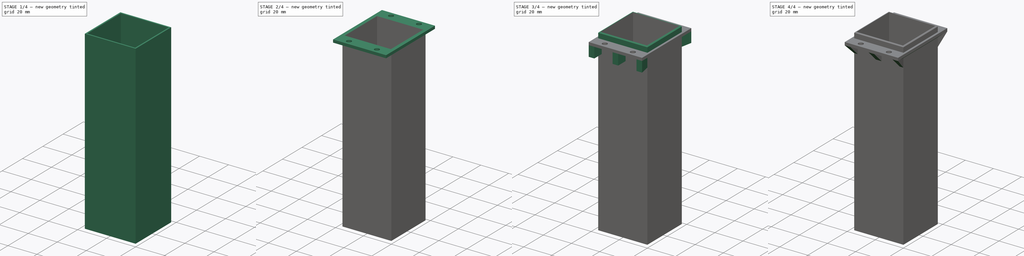
[diagram: build sequence overview — one tinted view per stage of 4, left to right]
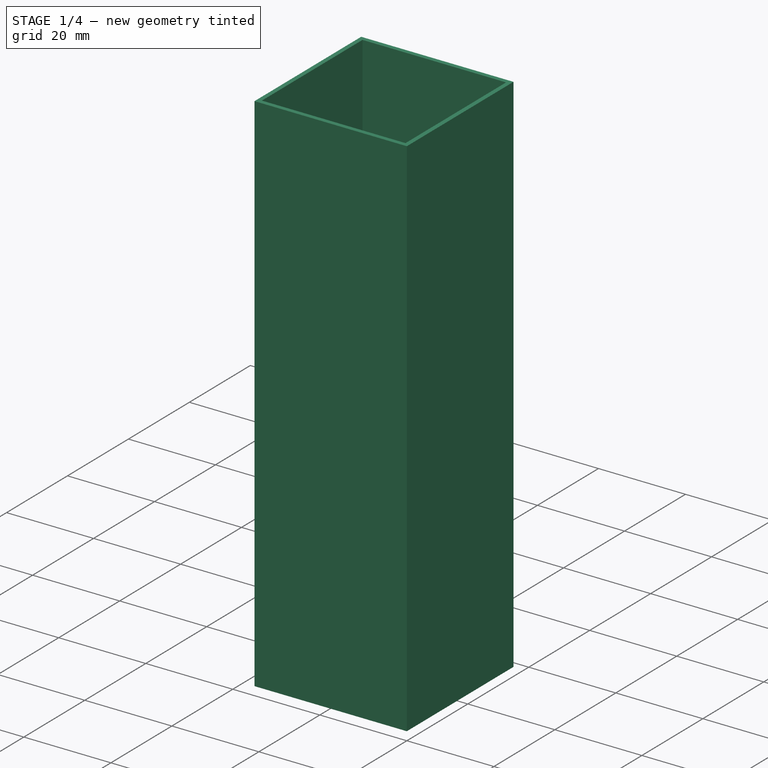
[diagram: stage 1 of 4 — iso view after this stage's code; geometry added in this stage tinted green]
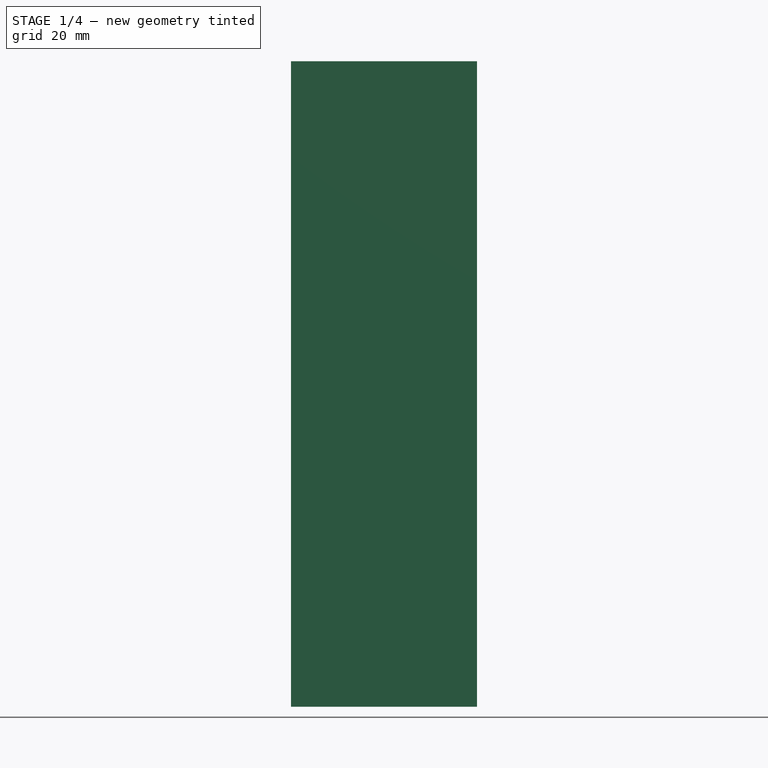
[diagram: stage 1 of 4 — front view after this stage's code; geometry added in this stage tinted green]
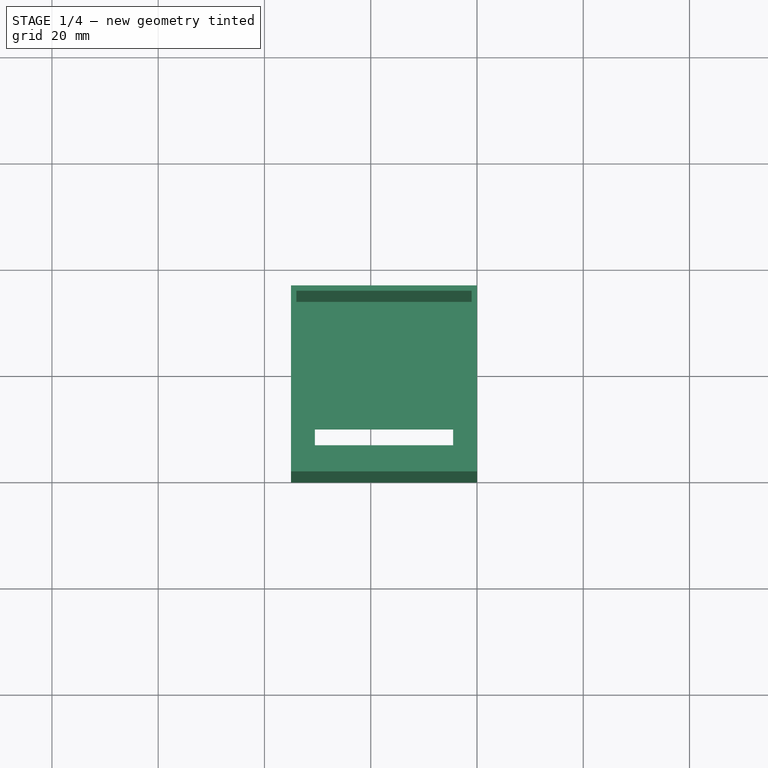
[diagram: stage 1 of 4 — top view after this stage's code; geometry added in this stage tinted green]
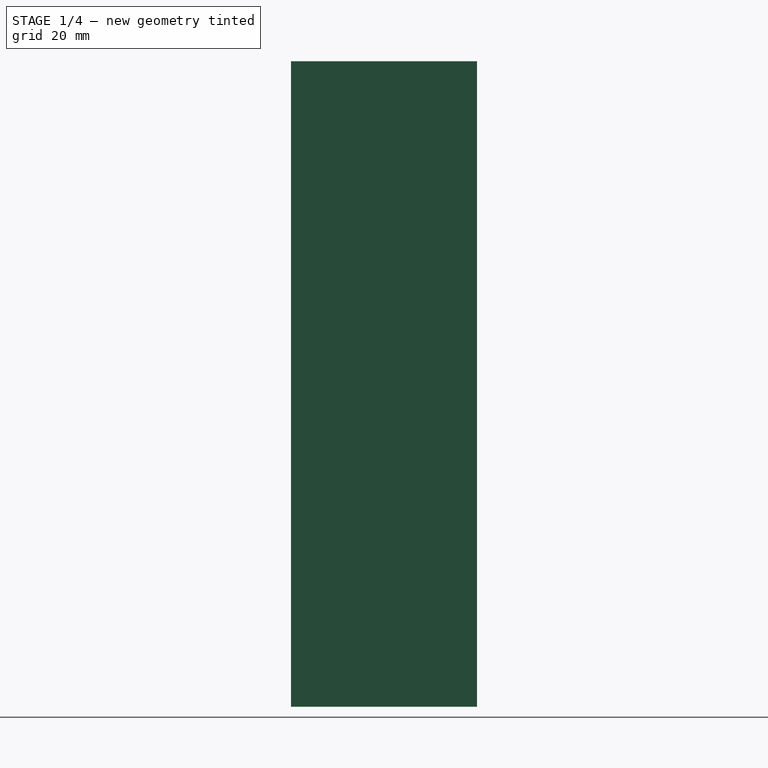
[diagram: stage 1 of 4 — right view after this stage's code; geometry added in this stage tinted green]
FCSTD DOCUMENT  (FreeCAD 0.18R4 (GitTag))
Label: SensorBody
License: All rights reserved
LicenseURL: http://en.wikipedia.org/wiki/All_rights_reserved
objects: Sketcher::SketchObject×5, PartDesign::Pad×5, PartDesign::Chamfer×4, PartDesign::Body×1
note: 20 computed .brp shape members not serialized (recipe doc carries the construction recipe); baked Part::Feature solids carry a one-line shape summary decoded from their .brp

FEATURE [Sketcher::SketchObject] Sketch
  MapMode = 5
  Support = -> [XY_Plane]
  sketch-geometry (8):
    g0: LineSegment StartX=0 StartY=0 StartZ=0 EndX=-35 EndY=0 EndZ=0
    g1: LineSegment StartX=-35 StartY=0 StartZ=0 EndX=-35 EndY=35 EndZ=0
    g2: LineSegment StartX=-35 StartY=35 StartZ=0 EndX=0 EndY=35 EndZ=0
    g3: LineSegment StartX=0 StartY=35 StartZ=0 EndX=0 EndY=0 EndZ=0
    g4: LineSegment StartX=-30.5 StartY=10 StartZ=0 EndX=-4.5 EndY=10 EndZ=0
    g5: LineSegment StartX=-4.5 StartY=10 StartZ=0 EndX=-4.5 EndY=7 EndZ=0
    g6: LineSegment StartX=-4.5 StartY=7 StartZ=0 EndX=-30.5 EndY=7 EndZ=0
    g7: LineSegment StartX=-30.5 StartY=7 StartZ=0 EndX=-30.5 EndY=10 EndZ=0
  constraints (23):
    c: Coincident(g0,g1)
    c: Coincident(g1,g2)
    c: Coincident(g2,g3)
    c: Coincident(g3,g0)
    c: Horizontal(g0)
    c: Horizontal(g2)
    c: Vertical(g1)
    c: Vertical(g3)
    c: Coincident(g0,g-1)
    c: Coincident(g4,g5)
    c: Coincident(g5,g6)
    c: Coincident(g6,g7)
    c: Coincident(g7,g4)
    c: Horizontal(g4)
    c: Horizontal(g6)
    c: Vertical(g5)
    c: Vertical(g7)
    c: DistanceX(g6,g6) = 26
    c: DistanceX(g2,g2) = 35
    c: DistanceY(g3,g3) = 35
    c: DistanceY(g5,g5) = 3
    c: DistanceY(g0,g5) = 7
    c: DistanceX(g5,g0) = 4.5
FEATURE [PartDesign::Pad] Pad
  Length = 1.5
  Length2 = 100
  Profile = -> Sketch
  Refine = true
  Type = 0
FEATURE [Sketcher::SketchObject] Sketch001
  ExternalGeometry = -> [Pad]
  MapMode = 5
  Placement = pos=(0,0,1.5) rot=(0,0,1;0rad)
  Support = -> [Pad]
  sketch-geometry (8):
    g0: LineSegment StartX=0 StartY=0 StartZ=0 EndX=-35 EndY=0 EndZ=0
    g1: LineSegment StartX=-35 StartY=0 StartZ=0 EndX=-35 EndY=35 EndZ=0
    g2: LineSegment StartX=-35 StartY=35 StartZ=0 EndX=0 EndY=35 EndZ=0
    g3: LineSegment StartX=0 StartY=35 StartZ=0 EndX=0 EndY=0 EndZ=0
    g4: LineSegment StartX=-1 StartY=1 StartZ=0 EndX=-34 EndY=1 EndZ=0
    g5: LineSegment StartX=-34 StartY=1 StartZ=0 EndX=-34 EndY=34 EndZ=0
    g6: LineSegment StartX=-34 StartY=34 StartZ=0 EndX=-1 EndY=34 EndZ=0
    g7: LineSegment StartX=-1 StartY=34 StartZ=0 EndX=-1 EndY=1 EndZ=0
  constraints (22):
    c: Coincident(g0,g1)
    c: Coincident(g1,g2)
    c: Coincident(g2,g3)
    c: Coincident(g3,g0)
    c: Horizontal(g0)
    c: Horizontal(g2)
    c: Vertical(g1)
    c: Vertical(g3)
    c: Coincident(g0,g-1)
    c: Coincident(g1,g-3)
    c: Coincident(g4,g5)
    c: Coincident(g5,g6)
    c: Coincident(g6,g7)
    c: Coincident(g7,g4)
    c: Horizontal(g4)
    c: Horizontal(g6)
    c: Vertical(g5)
    c: Vertical(g7)
    c: DistanceX(g6,g6) = 33
    c: DistanceY(g7,g7) = 33
    c: DistanceX(g4,g0) = 1
    c: DistanceY(g0,g4) = 1
FEATURE [PartDesign::Pad] Pad001
  BaseFeature = -> Pad
  Length = 120
  Length2 = 100
  Profile = -> Sketch001
  Refine = true
  Type = 0
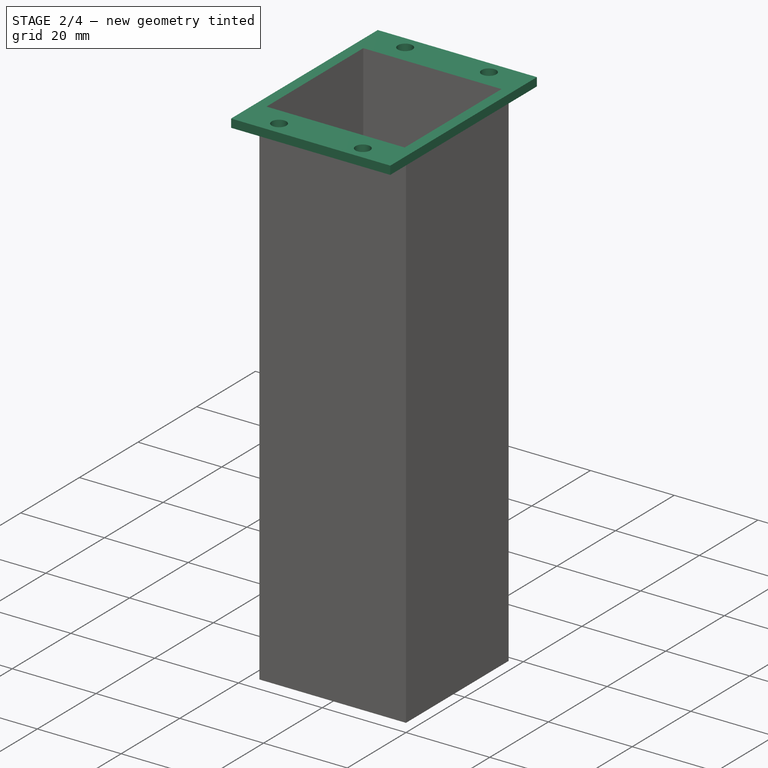
[diagram: stage 2 of 4 — iso view after this stage's code; geometry added in this stage tinted green]
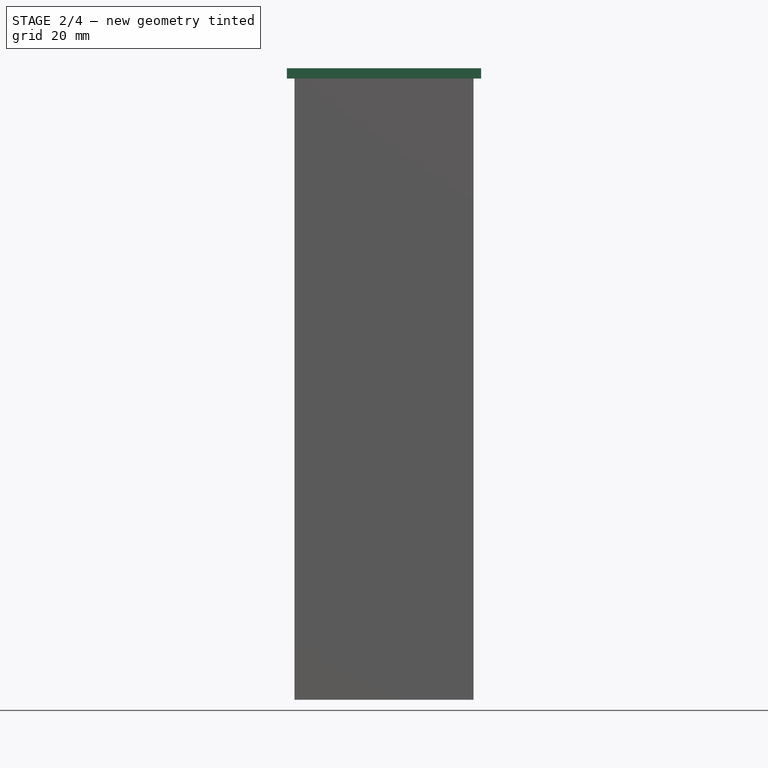
[diagram: stage 2 of 4 — front view after this stage's code; geometry added in this stage tinted green]
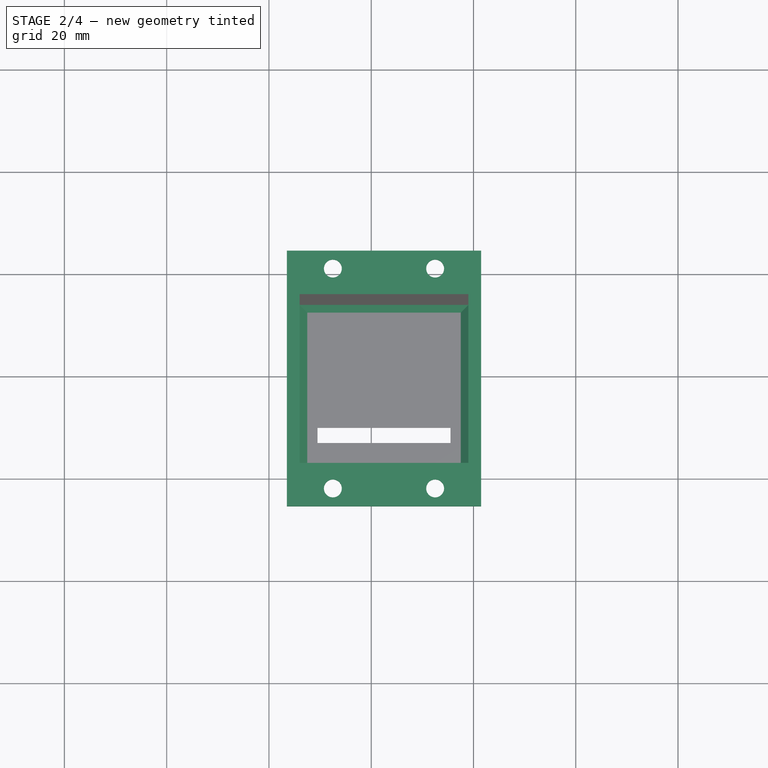
[diagram: stage 2 of 4 — top view after this stage's code; geometry added in this stage tinted green]
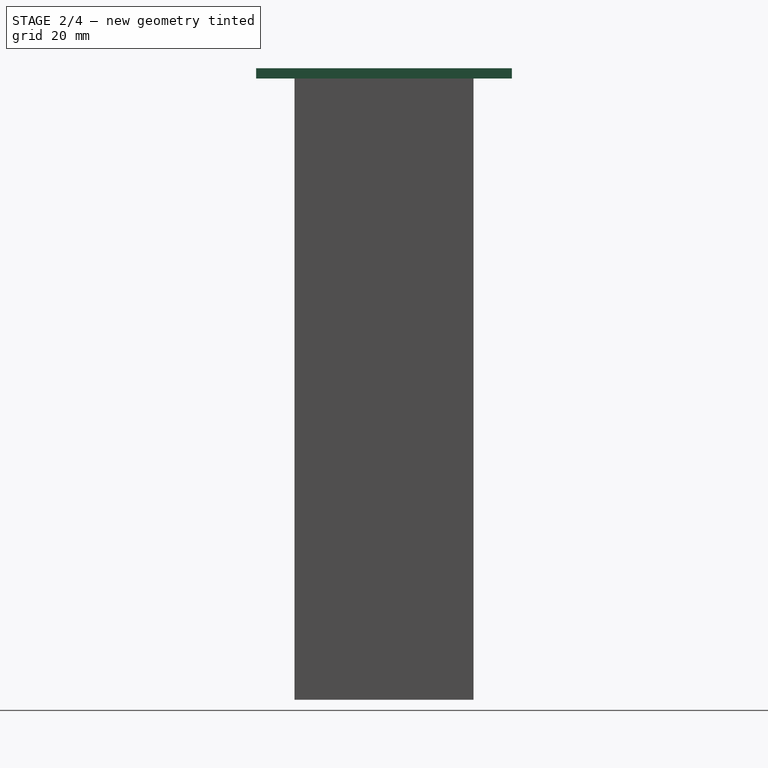
[diagram: stage 2 of 4 — right view after this stage's code; geometry added in this stage tinted green]
FEATURE [PartDesign::Chamfer] Chamfer
  Base = -> Pad001 [Edge19,Edge18,Edge20,Edge17]
  BaseFeature = -> Pad001
  Size = 1.5
FEATURE [Sketcher::SketchObject] Sketch002
  ExternalGeometry = -> [Chamfer]
  MapMode = 5
  Placement = pos=(0,0,121.5) rot=(0,0,1;0rad)
  Support = -> [Chamfer]
  sketch-geometry (12):
    g0: LineSegment StartX=1.5 StartY=-7.5 StartZ=0 EndX=-36.5 EndY=-7.5 EndZ=0
    g1: LineSegment StartX=-36.5 StartY=-7.5 StartZ=0 EndX=-36.5 EndY=42.5 EndZ=0
    g2: LineSegment StartX=-36.5 StartY=42.5 StartZ=0 EndX=1.5 EndY=42.5 EndZ=0
    g3: LineSegment StartX=1.5 StartY=42.5 StartZ=0 EndX=1.5 EndY=-7.5 EndZ=0
    g4: LineSegment StartX=-1 StartY=1 StartZ=0 EndX=-34 EndY=1 EndZ=0
    g5: LineSegment StartX=-34 StartY=1 StartZ=0 EndX=-34 EndY=34 EndZ=0
    g6: LineSegment StartX=-34 StartY=34 StartZ=0 EndX=-1 EndY=34 EndZ=0
    g7: LineSegment StartX=-1 StartY=34 StartZ=0 EndX=-1 EndY=1 EndZ=0
    g8: Circle CenterX=-27.5 CenterY=-4 CenterZ=0 NormalX=0 NormalY=0 NormalZ=1 AngleXU=0 Radius=1.75
    g9: Circle CenterX=-7.5 CenterY=-4 CenterZ=0 NormalX=0 NormalY=0 NormalZ=1 AngleXU=0 Radius=1.75
    g10: Circle CenterX=-27.5 CenterY=39 CenterZ=0 NormalX=0 NormalY=0 NormalZ=1 AngleXU=0 Radius=1.75
    g11: Circle CenterX=-7.5 CenterY=39 CenterZ=0 NormalX=0 NormalY=0 NormalZ=1 AngleXU=0 Radius=1.75
  constraints (34):
    c: Coincident(g0,g1)
    c: Coincident(g1,g2)
    c: Coincident(g2,g3)
    c: Coincident(g3,g0)
    c: Horizontal(g0)
    c: Horizontal(g2)
    c: Vertical(g1)
    c: Vertical(g3)
    c: DistanceY(g3,g3) = 50
    c: DistanceX(g0,g0) = 38
    c: DistanceX(g-1,g0) = 1.5
    c: DistanceY(g0,g-1) = 7.5
    c: Coincident(g4,g5)
    c: Coincident(g5,g6)
    c: Coincident(g6,g7)
    c: Coincident(g7,g4)
    c: Horizontal(g4)
    c: Horizontal(g6)
    c: Vertical(g5)
    c: Vertical(g7)
    c: Coincident(g4,g-4)
    c: Coincident(g5,g-3)
    c: DistanceX(g10,g11) = 20
    c: DistanceX(g8,g9) = 20
    c: DistanceX(g11,g2) = 9
    c: DistanceX(g9,g0) = 9
    c: Diameter(g10) = 3.5
    c: Equal(g10,g11)
    c: Equal(g10,g8)
    c: Equal(g10,g9)
    c: DistanceY(g11,g2) = 3.5
    c: DistanceY(g10,g2) = 3.5
    c: DistanceY(g0,g9) = 3.5
    c: DistanceY(g0,g8) = 3.5
FEATURE [PartDesign::Pad] Pad002
  BaseFeature = -> Chamfer
  Length = 2
  Length2 = 100
  Profile = -> Sketch002
  Refine = true
  Type = 0
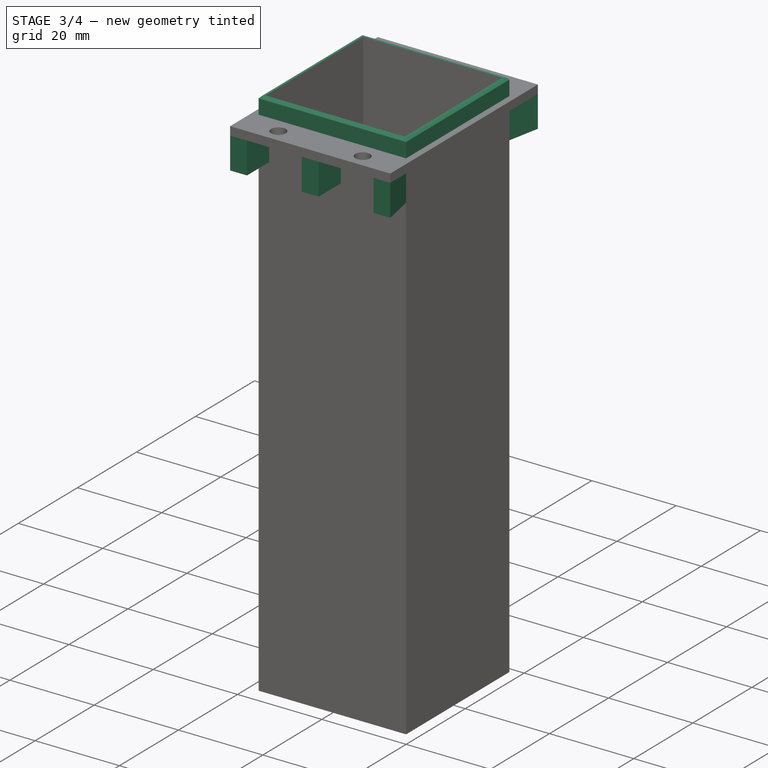
[diagram: stage 3 of 4 — iso view after this stage's code; geometry added in this stage tinted green]
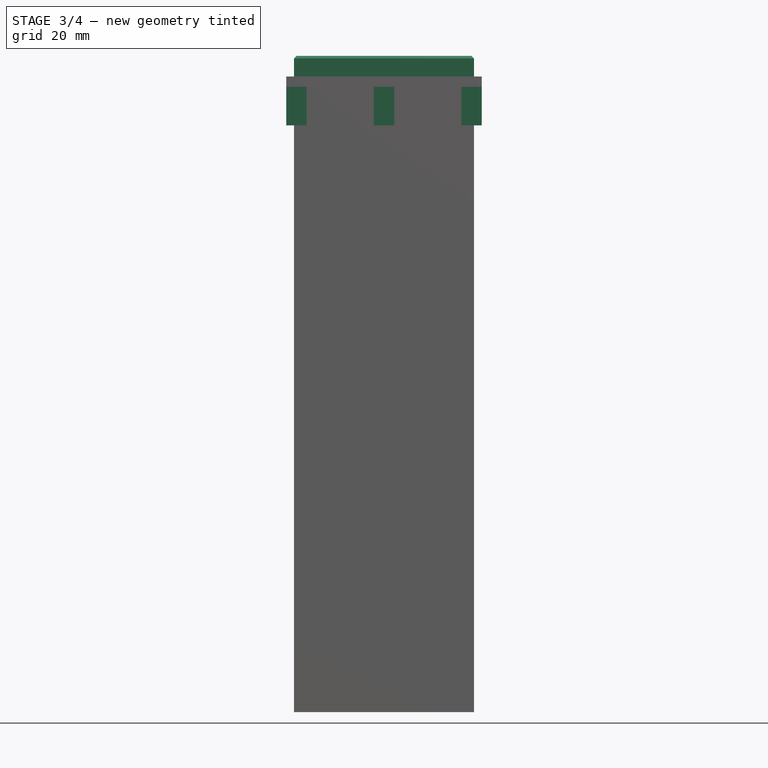
[diagram: stage 3 of 4 — front view after this stage's code; geometry added in this stage tinted green]
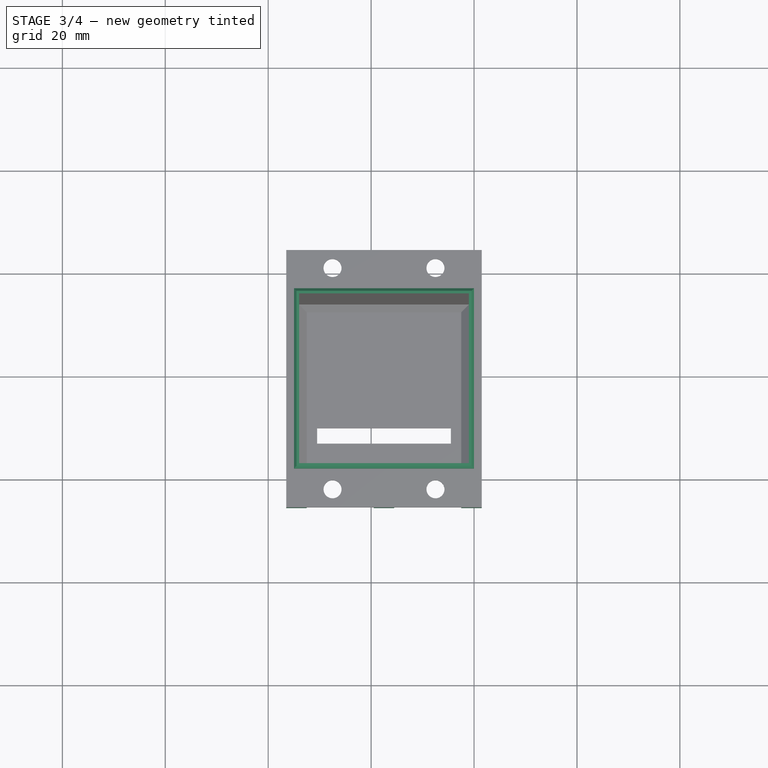
[diagram: stage 3 of 4 — top view after this stage's code; geometry added in this stage tinted green]
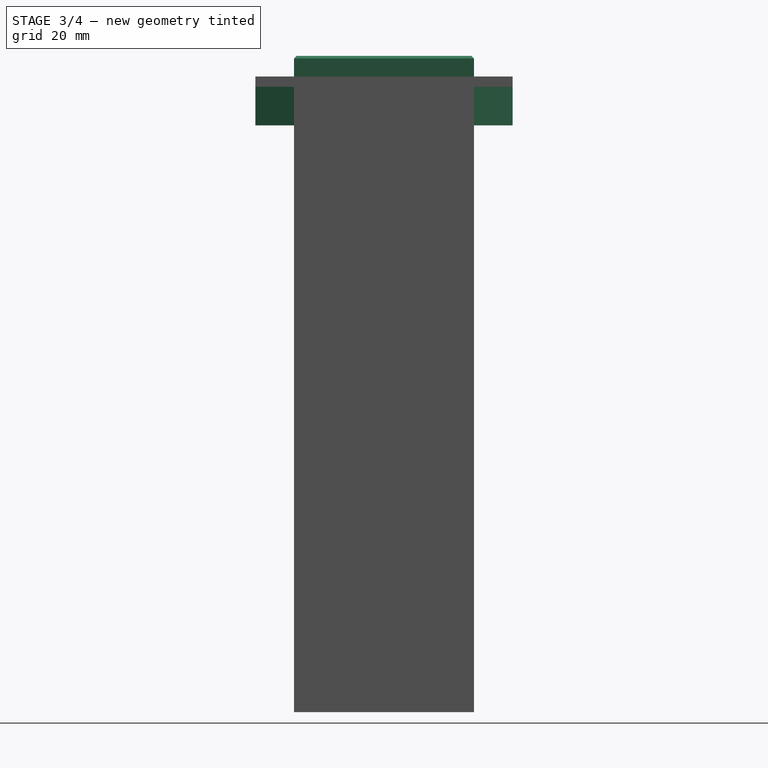
[diagram: stage 3 of 4 — right view after this stage's code; geometry added in this stage tinted green]
FEATURE [Sketcher::SketchObject] Sketch003
  ExternalGeometry = -> [Pad002]
  MapMode = 5
  Placement = pos=(0,0,123.5) rot=(0,0,1;0rad)
  Support = -> [Pad002]
  sketch-geometry (8):
    g0: LineSegment StartX=0 StartY=0 StartZ=0 EndX=-35 EndY=0 EndZ=0
    g1: LineSegment StartX=-35 StartY=0 StartZ=0 EndX=-35 EndY=35 EndZ=0
    g2: LineSegment StartX=-35 StartY=35 StartZ=0 EndX=0 EndY=35 EndZ=0
    g3: LineSegment StartX=0 StartY=35 StartZ=0 EndX=0 EndY=0 EndZ=0
    g4: LineSegment StartX=-1 StartY=1 StartZ=0 EndX=-34 EndY=1 EndZ=0
    g5: LineSegment StartX=-34 StartY=1 StartZ=0 EndX=-34 EndY=34 EndZ=0
    g6: LineSegment StartX=-34 StartY=34 StartZ=0 EndX=-1 EndY=34 EndZ=0
    g7: LineSegment StartX=-1 StartY=34 StartZ=0 EndX=-1 EndY=1 EndZ=0
  constraints (21):
    c: Coincident(g0,g1)
    c: Coincident(g1,g2)
    c: Coincident(g2,g3)
    c: Coincident(g3,g0)
    c: Horizontal(g0)
    c: Horizontal(g2)
    c: Vertical(g1)
    c: Vertical(g3)
    c: Coincident(g0,g-1)
    c: DistanceX(g2,g2) = 35
    c: DistanceY(g3,g3) = 35
    c: Coincident(g4,g5)
    c: Coincident(g5,g6)
    c: Coincident(g6,g7)
    c: Coincident(g7,g4)
    c: Horizontal(g4)
    c: Horizontal(g6)
    c: Vertical(g5)
    c: Vertical(g7)
    c: Coincident(g4,g-4)
    c: Coincident(g5,g-3)
FEATURE [PartDesign::Pad] Pad003
  BaseFeature = -> Pad002
  Length = 4
  Length2 = 100
  Profile = -> Sketch003
  Refine = true
  Type = 0
FEATURE [PartDesign::Chamfer] Chamfer001
  Base = -> Pad003 [Edge66,Edge65,Edge67,Edge68]
  BaseFeature = -> Pad003
  Size = 0.5
FEATURE [Sketcher::SketchObject] Sketch004
  ExternalGeometry = -> [Chamfer001]
  MapMode = 5
  Placement = pos=(0,0,121.5) rot=(1,0,0;3.14159rad)
  Support = -> [Chamfer001]
  sketch-geometry (24):
    g0: LineSegment StartX=-35 StartY=0 StartZ=0 EndX=-36.5 EndY=7.5 EndZ=0
    g1: LineSegment StartX=-36.5 StartY=7.5 StartZ=0 EndX=-32.5 EndY=7.5 EndZ=0
    g2: LineSegment StartX=-32.5 StartY=7.5 StartZ=0 EndX=-32.5 EndY=0 EndZ=0
    g3: LineSegment StartX=-32.5 StartY=0 StartZ=0 EndX=-35 EndY=0 EndZ=0
    g4: LineSegment StartX=0 StartY=0 StartZ=0 EndX=1.5 EndY=7.5 EndZ=0
    g5: LineSegment StartX=1.5 StartY=7.5 StartZ=0 EndX=-2.5 EndY=7.5 EndZ=0
    g6: LineSegment StartX=-2.5 StartY=7.5 StartZ=0 EndX=-2.5 EndY=0 EndZ=0
    g7: LineSegment StartX=-2.5 StartY=0 StartZ=0 EndX=0 EndY=0 EndZ=0
    g8: LineSegment StartX=-19.5 StartY=7.5 StartZ=0 EndX=-15.5 EndY=7.5 EndZ=0
    g9: LineSegment StartX=-15.5 StartY=7.5 StartZ=0 EndX=-15.5 EndY=0 EndZ=0
    g10: LineSegment StartX=-15.5 StartY=0 StartZ=0 EndX=-19.5 EndY=0 EndZ=0
    g11: LineSegment StartX=-19.5 StartY=0 StartZ=0 EndX=-19.5 EndY=7.5 EndZ=0
    g12: LineSegment StartX=-35 StartY=-35 StartZ=0 EndX=-36.5 EndY=-42.5 EndZ=0
    g13: LineSegment StartX=-36.5 StartY=-42.5 StartZ=0 EndX=-32.5 EndY=-42.5 EndZ=0
    g14: LineSegment StartX=-32.5 StartY=-42.5 StartZ=0 EndX=-32.5 EndY=-35 EndZ=0
    g15: LineSegment StartX=-32.5 StartY=-35 StartZ=0 EndX=-35 EndY=-35 EndZ=0
    g16: LineSegment StartX=0 StartY=-35 StartZ=0 EndX=1.5 EndY=-42.5 EndZ=0
    g17: LineSegment StartX=1.5 StartY=-42.5 StartZ=0 EndX=-2.5 EndY=-42.5 EndZ=0
    g18: LineSegment StartX=-2.5 StartY=-42.5 StartZ=0 EndX=-3.62896 EndY=-35 EndZ=0
    g19: LineSegment StartX=-3.62896 StartY=-35 StartZ=0 EndX=0 EndY=-35 EndZ=0
    g20: LineSegment StartX=-19.5 StartY=-35 StartZ=0 EndX=-15.5 EndY=-35 EndZ=0
    g21: LineSegment StartX=-15.5 StartY=-35 StartZ=0 EndX=-15.5 EndY=-42.5 EndZ=0
    g22: LineSegment StartX=-15.5 StartY=-42.5 StartZ=0 EndX=-19.5 EndY=-42.5 EndZ=0
    g23: LineSegment StartX=-19.5 StartY=-42.5 StartZ=0 EndX=-19.5 EndY=-35 EndZ=0
  constraints (63):
    c: Coincident(g-4,g0)
    c: Coincident(g0,g-3)
    c: Coincident(g0,g1)
    c: PointOnObject(g1,g-3)
    c: Coincident(g1,g2)
    c: PointOnObject(g2,g-4)
    c: Vertical(g2)
    c: Coincident(g2,g3)
    c: Coincident(g3,g0)
    c: Coincident(g-1,g4)
    c: Coincident(g4,g-3)
    c: Coincident(g4,g5)
    c: PointOnObject(g5,g-3)
    c: Coincident(g5,g6)
    c: PointOnObject(g6,g-4)
    c: Vertical(g6)
    c: Coincident(g6,g7)
    c: Coincident(g7,g4)
    c: Coincident(g8,g9)
    c: Coincident(g9,g10)
    c: Coincident(g10,g11)
    c: Coincident(g11,g8)
    c: Horizontal(g8)
    c: Horizontal(g10)
    c: Vertical(g9)
    c: Vertical(g11)
    c: PointOnObject(g8,g-3)
    c: PointOnObject(g9,g-4)
    c: DistanceX(g1,g1) = 4
    c: DistanceX(g5,g5) = 4
    c: DistanceX(g8,g8) = 4
    c: DistanceX(g1,g8) = 13
    c: Coincident(g-6,g12)
    c: Coincident(g12,g-5)
    c: Coincident(g12,g13)
    c: PointOnObject(g13,g-5)
    c: Coincident(g13,g14)
    c: PointOnObject(g14,g-6)
    c: Vertical(g14)
    c: Coincident(g14,g15)
    c: Coincident(g15,g12)
    c: Coincident(g-6,g16)
    c: Coincident(g16,g-5)
    c: Coincident(g16,g17)
    c: PointOnObject(g17,g-5)
    c: Coincident(g17,g18)
    c: PointOnObject(g18,g-6)
    c: Coincident(g18,g19)
    c: Coincident(g19,g16)
    c: Coincident(g20,g21)
    c: Coincident(g21,g22)
    c: Coincident(g22,g23)
    c: Coincident(g23,g20)
    c: Horizontal(g20)
    c: Horizontal(g22)
    c: Vertical(g21)
    c: Vertical(g23)
    c: PointOnObject(g20,g-6)
    c: PointOnObject(g21,g-5)
    c: DistanceX(g13,g13) = 4
    c: DistanceX(g22,g22) = 4
    c: DistanceX(g17,g17) = 4
    c: DistanceX(g13,g22) = 13
FEATURE [PartDesign::Pad] Pad004
  BaseFeature = -> Chamfer001
  Length = 7.5
  Length2 = 100
  Profile = -> Sketch004
  Refine = true
  Type = 0
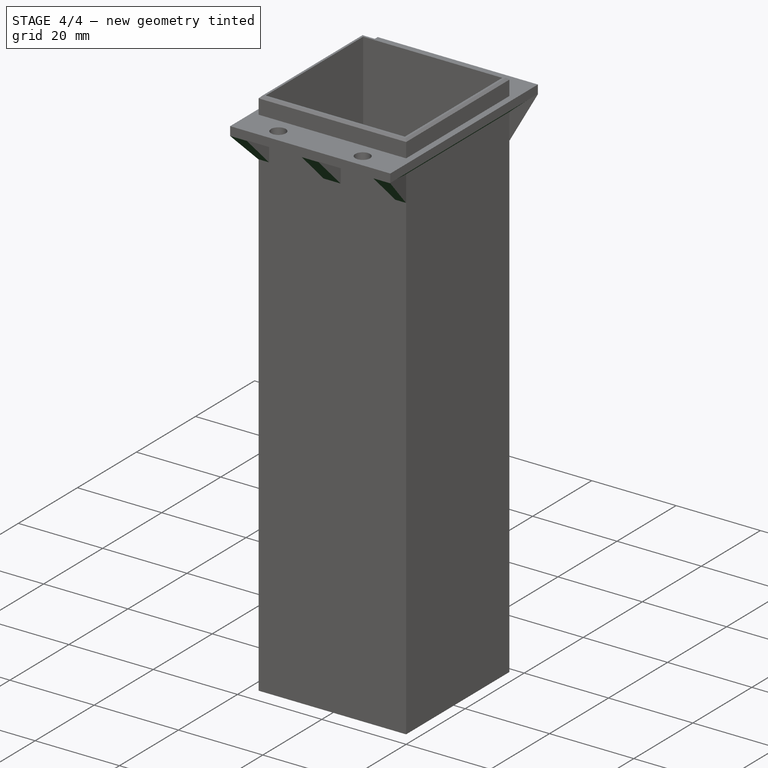
[diagram: stage 4 of 4 — iso view after this stage's code; geometry added in this stage tinted green]
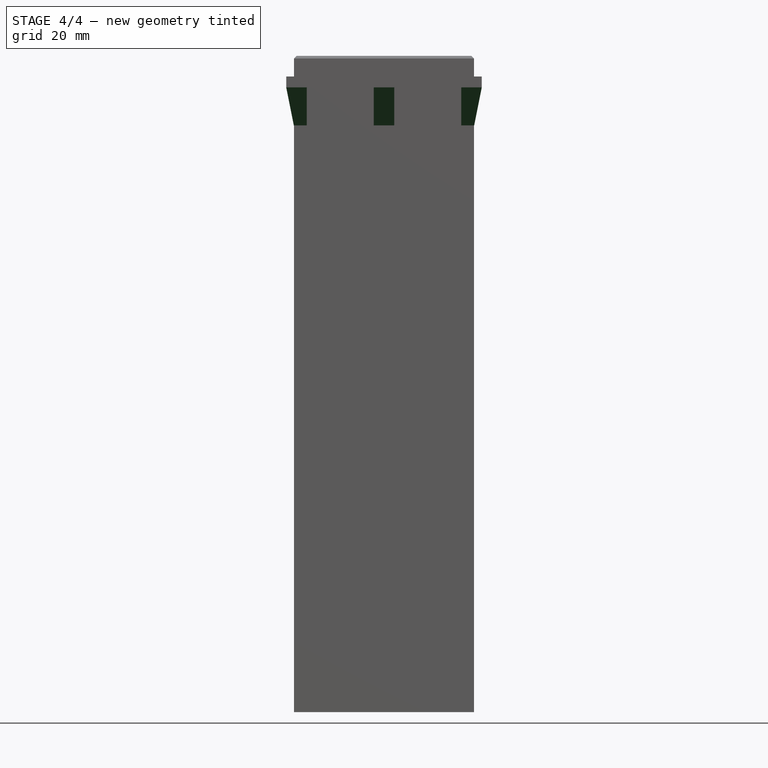
[diagram: stage 4 of 4 — front view after this stage's code; geometry added in this stage tinted green]
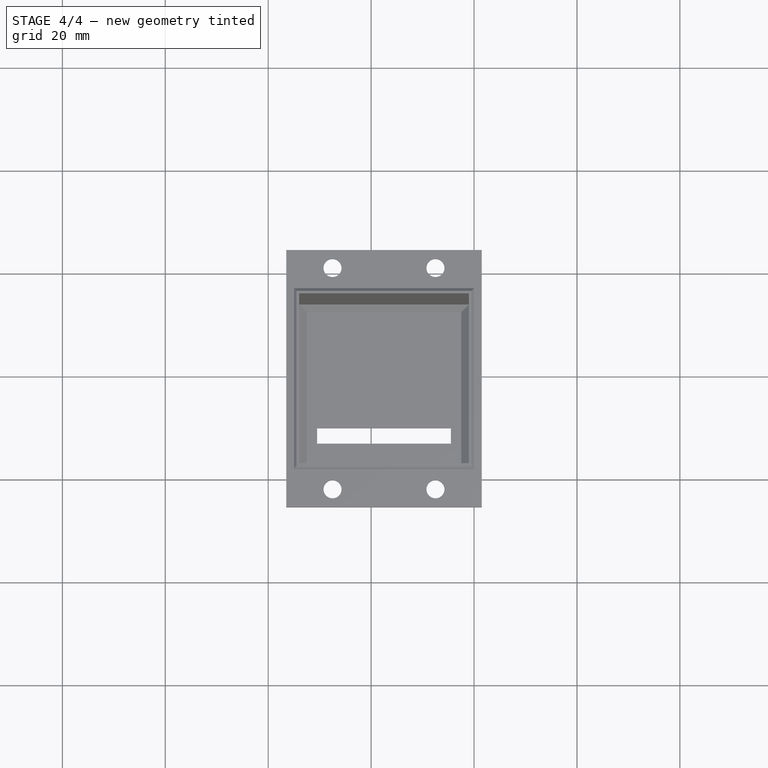
[diagram: stage 4 of 4 — top view after this stage's code; geometry added in this stage tinted green]
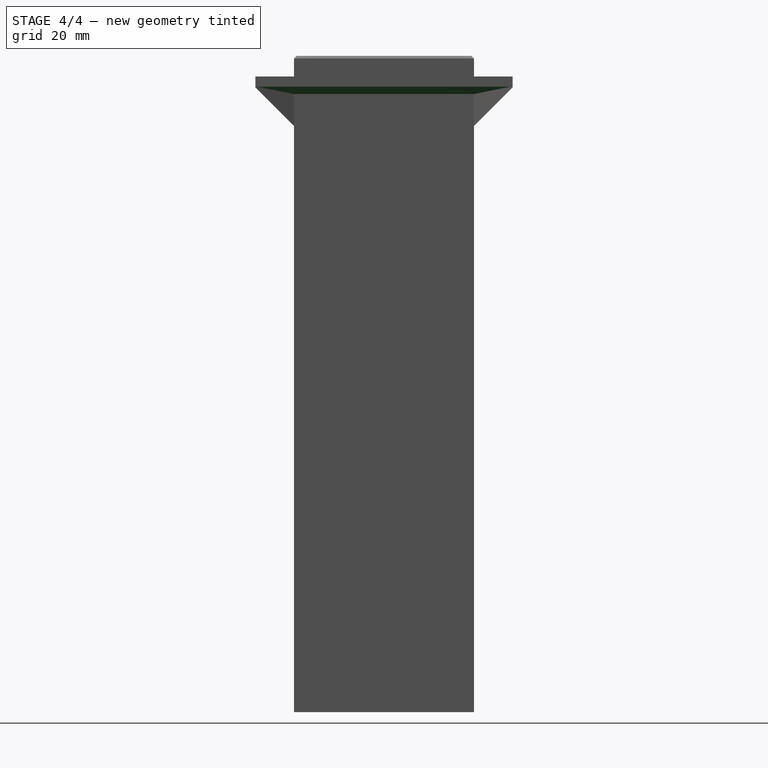
[diagram: stage 4 of 4 — right view after this stage's code; geometry added in this stage tinted green]
FEATURE [PartDesign::Chamfer] Chamfer002
  Base = -> Pad004 [Edge126,Edge120,Edge107,Edge138,Edge149,Edge152]
  BaseFeature = -> Pad004
  Size = 7.4
FEATURE [PartDesign::Chamfer] Chamfer003
  Base = -> Chamfer002 [Edge91,Edge23]
  BaseFeature = -> Chamfer002
  Size = 1.4
FEATURE [PartDesign::Body] Body
  Group = -> [Sketch,Pad,Sketch001,Pad001,Chamfer,Sketch002,Pad002,Sketch003,Pad003,Chamfer001,Sketch004,Pad004,Chamfer002,Chamfer003]
  Origin = -> Origin
  Tip = -> Chamfer003
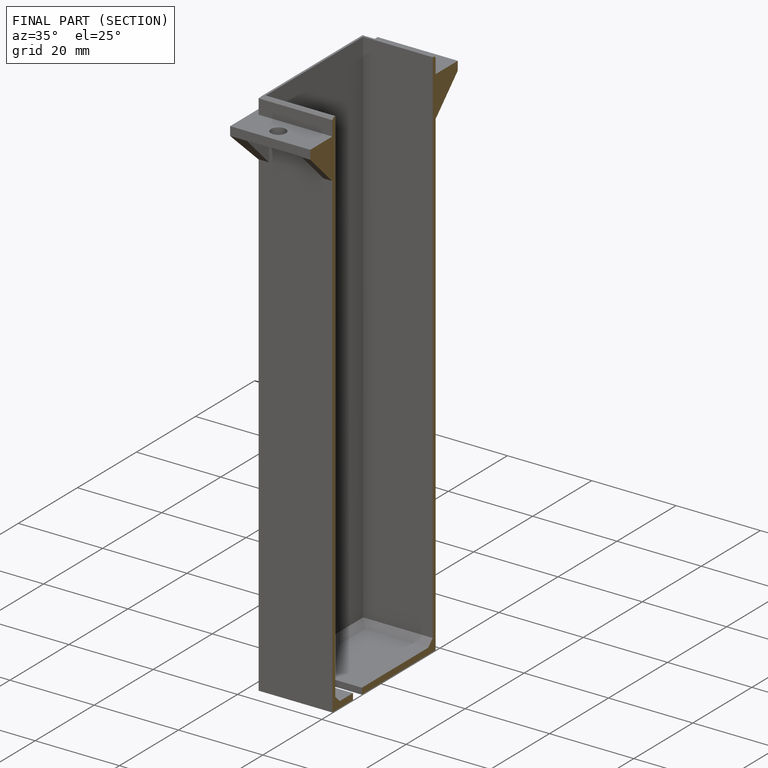
[diagram: finished part — half-section view (interior)]
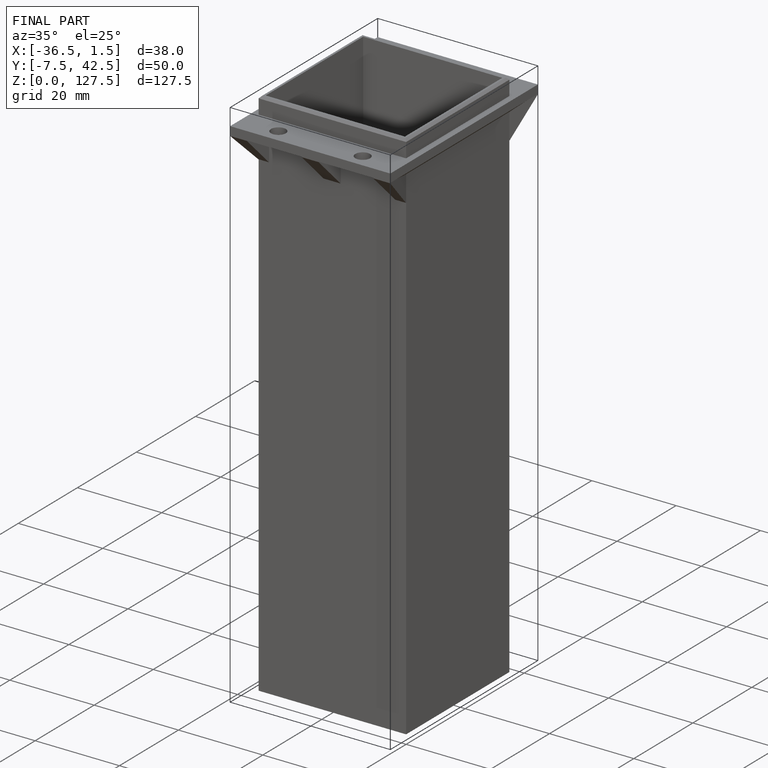
[diagram: finished part — iso view with bounding-box wireframe]
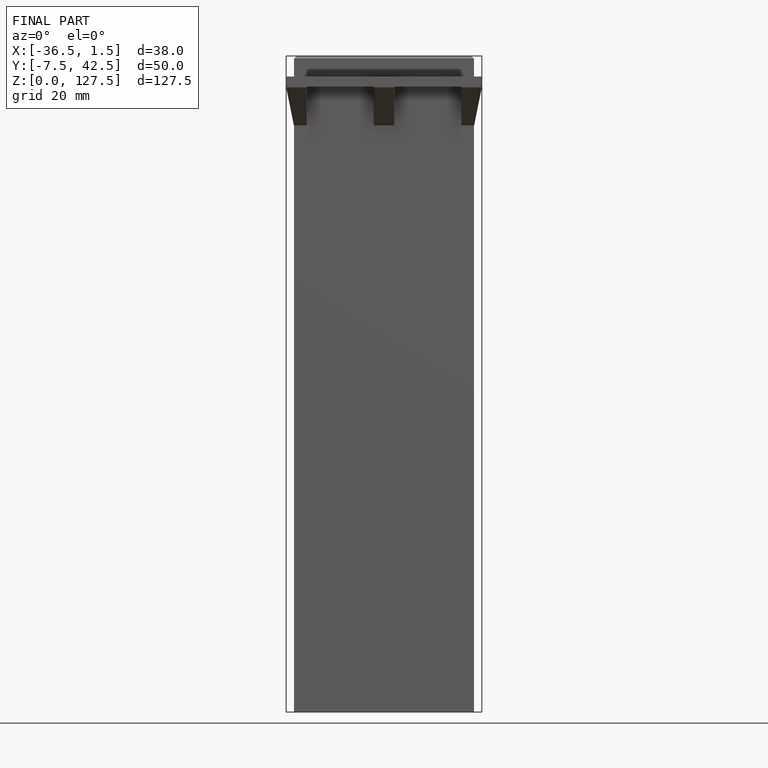
[diagram: finished part — front view with bounding-box wireframe]
